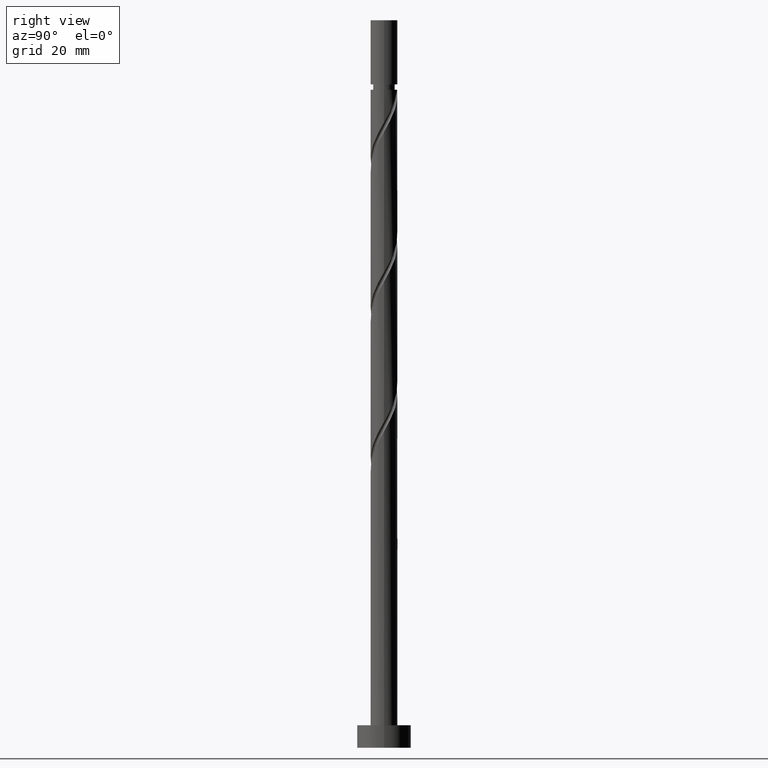
[diagram: clean part render]
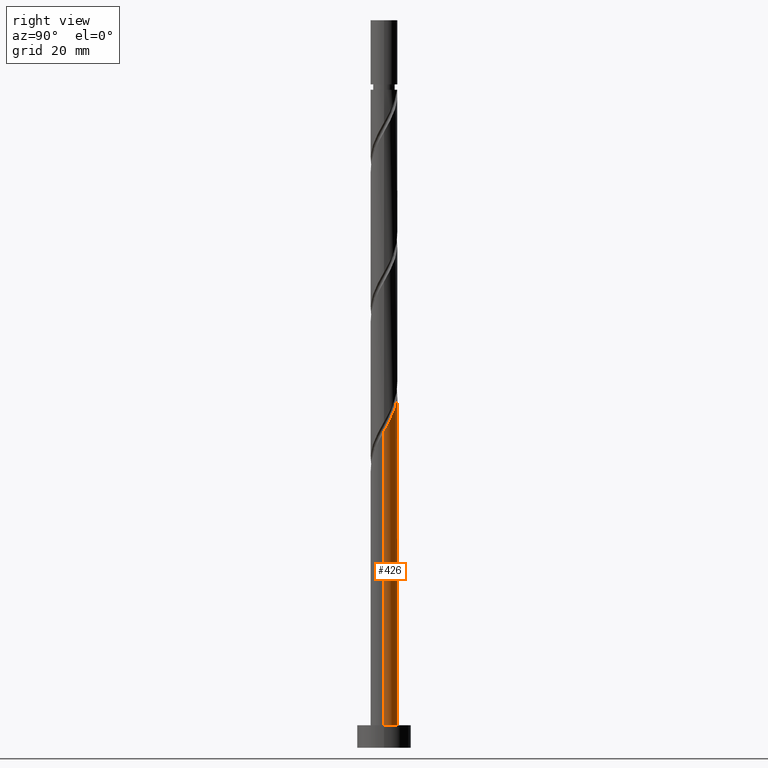
[diagram: same view with one face highlighted and labeled with its STEP entity id]
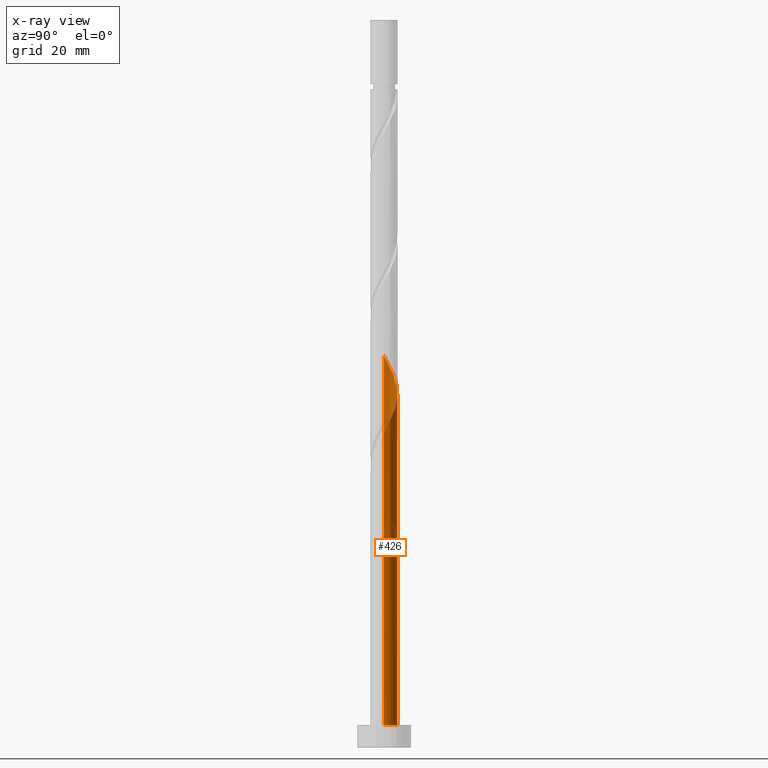
[diagram: x-ray of the same camera — body ghosted, the highlighted face saturated]
A machine part, right view. The second image highlights one B-rep face of the part: STEP entity #426.
The next image is the same camera in x-ray: the body ghosted, the highlighted face saturated — about 0% of this face is hidden behind the body in this view.
In plain terms, the highlighted cylindrical surface (edge-blend (fillet) strip) has radius 3 mm, axis along (-0, -0, -1).
Its self-contained STEP definition (entity closure, byte-faithful):
#16 = CARTESIAN_POINT ( 'NONE',  ( -0.9529893618115770071, 2.844610918258236865, 49.30454666013008591 ) ) ;
#19 = CARTESIAN_POINT ( 'NONE',  ( 1.656756518304344672, 2.501031355072561801, 75.69343554901898585 ) ) ;
#24 = CARTESIAN_POINT ( 'NONE',  ( -0.5784892297585046972, 2.970074347914948731, 48.61010221568562173 ) ) ;
#27 = CARTESIAN_POINT ( 'NONE',  ( 0.5784892297585081389, 2.970074347914953172, 77.77676888235230024 ) ) ;
#30 = EDGE_CURVE ( 'NONE', #1408, #907, #1541, .T. ) ;
#36 = CARTESIAN_POINT ( 'NONE',  ( -2.501031355072562690, 1.656756518304344228, 84.02676888235231445 ) ) ;
#62 = EDGE_CURVE ( 'NONE', #1650, #1019, #709, .T. ) ;
#76 = VECTOR ( 'NONE', #243, 1000.000000000000000 ) ;
#95 = CARTESIAN_POINT ( 'NONE',  ( -3.000000000000005773, 6.833879490734389093E-15, 53.79653556047554730 ) ) ;
#142 = CARTESIAN_POINT ( 'NONE',  ( -0.1842775552007381856, 2.994334948306425659, 47.91565777124118597 ) ) ;
#150 = CARTESIAN_POINT ( 'NONE',  ( -1.327489493864648873, 2.719147488601523666, 49.99899110457450746 ) ) ;
#164 = CARTESIAN_POINT ( 'NONE',  ( -1.337578430002085428, 2.685308910273302097, 81.24899110457452878 ) ) ;
#167 = ORIENTED_EDGE ( 'NONE', *, *, #1230, .T. ) ;
#192 = LINE ( 'NONE', #336, #705 ) ;
#222 = CARTESIAN_POINT ( 'NONE',  ( 0.000000000000000000, 0.000000000000000000, 162.0000000000000000 ) ) ;
#243 = DIRECTION ( 'NONE',  ( -0.000000000000000000, -0.000000000000000000, -1.000000000000000000 ) ) ;
#269 = CARTESIAN_POINT ( 'NONE',  ( 3.000000000000000444, 3.673940397442060361E-16, 5.000000000000000000 ) ) ;
#273 = CARTESIAN_POINT ( 'NONE',  ( 0.2099341193570284925, 3.018595548697901698, 47.22121332679674310 ) ) ;
#299 = CARTESIAN_POINT ( 'NONE',  ( -2.247618455994264242, 1.987010638188423606, 52.08232443790787158 ) ) ;
#302 = CARTESIAN_POINT ( 'NONE',  ( 0.1842775552007414608, 2.994334948306429656, 78.47121332679672889 ) ) ;
#306 = CARTESIAN_POINT ( 'NONE',  ( -2.685308910273296323, 1.337578430002084540, 53.47121332679674310 ) ) ;
#317 = CARTESIAN_POINT ( 'NONE',  ( -2.282915221543597273, 1.986023542744036696, 83.33232443790784316 ) ) ;
#336 = CARTESIAN_POINT ( 'NONE',  ( 3.000000000000000444, 3.673940397442060361E-16, 162.0000000000000000 ) ) ;
#343 =( BOUNDED_CURVE ( )  B_SPLINE_CURVE ( 2, ( #1245, #843, #700, #1092, #860, #1101, #1657, #460, #19, #1626, #1378, #27, #302, #853, #1525, #1386, #164, #716, #1254, #317, #36, #585, #1116, #870, #1648, #449, #988 ),
 .UNSPECIFIED., .F., .F. ) 
 B_SPLINE_CURVE_WITH_KNOTS ( ( 3, 2, 2, 2, 2, 2, 2, 2, 2, 2, 2, 2, 2, 3 ),
 ( 0.1795317669814463779, 0.1875000000000000000, 0.1979166666666666297, 0.2083333333333333703, 0.2187500000000000000, 0.2291666666666666297, 0.2395833333333333703, 0.2500000000000000000, 0.2604166666666666297, 0.2708333333333333703, 0.2812500000000000000, 0.2916666666666666297, 0.3020833333333333703, 0.3045317669814464057 ),
 .UNSPECIFIED. ) 
 CURVE ( )  GEOMETRIC_REPRESENTATION_ITEM ( )  RATIONAL_B_SPLINE_CURVE ( ( 0.9062941362546431678, 0.9031415850403475831, 0.9090909090909228274, 0.9013135103398413062, 0.9090909090909228274, 0.9013135103398413062, 0.9090909090909228274, 0.9013135103398413062, 0.9090909090909228274, 0.9013135103398413062, 0.9090909090909228274, 0.9013135103398413062, 0.9090909090909228274, 0.9013135103398413062, 0.9090909090909228274, 0.9013135103398413062, 0.9090909090909228274, 0.9013135103398413062, 0.9090909090909228274, 0.9013135103398413062, 0.9090909090909228274, 0.9013135103398413062, 0.9090909090909228274, 0.9013135103398413062, 0.9090909090909228274, 0.9072628343904165504, 0.9062941362546430568 ) ) 
 REPRESENTATION_ITEM ( '' )  );
#354 = DIRECTION ( 'NONE',  ( 0.000000000000000000, -0.000000000000000000, -1.000000000000000000 ) ) ;
#357 = EDGE_LOOP ( 'NONE', ( #1313, #167, #750, #1389, #409, #1295, #1161, #418 ) ) ;
#373 = CARTESIAN_POINT ( 'NONE',  ( -1.987010638188425604, 2.247618455994267350, 49.30454666013007170 ) ) ;
#379 = EDGE_CURVE ( 'NONE', #1552, #462, #836, .T. ) ;
#389 = CARTESIAN_POINT ( 'NONE',  ( -3.000000000000004885, 0.09222585497302343560, 53.63337187244741244 ) ) ;
#409 = ORIENTED_EDGE ( 'NONE', *, *, #379, .F. ) ;
#418 = ORIENTED_EDGE ( 'NONE', *, *, #1346, .F. ) ;
#426 = ADVANCED_FACE ( 'NONE', ( #1437 ), #1563, .T. ) ;
#430 = CARTESIAN_POINT ( 'NONE',  ( 0.000000000000000000, 0.000000000000000000, 5.000000000000000000 ) ) ;
#449 = CARTESIAN_POINT ( 'NONE',  ( -3.000000000000004885, 0.09222585497301795388, 86.96670520578072683 ) ) ;
#457 = VERTEX_POINT ( 'NONE', #508 ) ;
#460 = CARTESIAN_POINT ( 'NONE',  ( 1.986023542744038251, 2.282915221543595496, 74.99899110457451457 ) ) ;
#462 = VERTEX_POINT ( 'NONE', #95 ) ;
#508 = CARTESIAN_POINT ( 'NONE',  ( 3.000000000000005773, -3.738446110905027621E-16, 70.46320222714223291 ) ) ;
#535 = CARTESIAN_POINT ( 'NONE',  ( -2.994334948306429656, 0.1842775552007395179, 53.47121332679673600 ) ) ;
#585 = CARTESIAN_POINT ( 'NONE',  ( -2.719147488601527662, 1.327489493864651982, 84.72121332679671468 ) ) ;
#594 = VECTOR ( 'NONE', #1735, 1000.000000000000000 ) ;
#664 = CARTESIAN_POINT ( 'NONE',  ( -2.501031355072562690, 1.656756518304344228, 50.69343554901897164 ) ) ;
#700 = CARTESIAN_POINT ( 'NONE',  ( 2.940000000000005720, 0.5969924622639724010, 71.52676888235231445 ) ) ;
#705 = VECTOR ( 'NONE', #1279, 1000.000000000000000 ) ;
#708 = CARTESIAN_POINT ( 'NONE',  ( 0.5969924622639731782, 2.940000000000000835, 46.52676888235230024 ) ) ;
#709 =( BOUNDED_CURVE ( )  B_SPLINE_CURVE ( 2, ( #1220, #1227, #1749, #1637, #306, #1114, #299, #963, #830, #150, #16, #24, #142, #273, #1623 ),
 .UNSPECIFIED., .F., .T. ) 
 B_SPLINE_CURVE_WITH_KNOTS ( ( 3, 2, 2, 2, 2, 2, 2, 3 ),
 ( 0.9295317669814463502, 0.9375000000000000000, 0.9479166666666666297, 0.9583333333333333703, 0.9687500000000000000, 0.9791666666666666297, 0.9895833333333333703, 1.000000000000000000 ),
 .UNSPECIFIED. ) 
 CURVE ( )  GEOMETRIC_REPRESENTATION_ITEM ( )  RATIONAL_B_SPLINE_CURVE ( ( 0.9062941362546369506, 0.9031415850403413659, 0.9090909090909166101, 0.9013135103398351999, 0.9090909090909166101, 0.9013135103398351999, 0.9090909090909166101, 0.9013135103398351999, 0.9090909090909166101, 0.9013135103398351999, 0.9090909090909166101, 0.9013135103398351999, 0.9090909090909166101, 0.9013135103398351999, 0.9090909090909166101 ) ) 
 REPRESENTATION_ITEM ( '' )  );
#716 = CARTESIAN_POINT ( 'NONE',  ( -1.691106054833254158, 2.509213369244498448, 81.94343554901894322 ) ) ;
#746 = VERTEX_POINT ( 'NONE', #806 ) ;
#750 = ORIENTED_EDGE ( 'NONE', *, *, #30, .T. ) ;
#806 = CARTESIAN_POINT ( 'NONE',  ( -3.000000000000005773, -1.525286013249251123E-15, 87.12986889380889011 ) ) ;
#830 = CARTESIAN_POINT ( 'NONE',  ( -1.656756518304340897, 2.501031355072560025, 50.69343554901897164 ) ) ;
#836 =( BOUNDED_CURVE ( )  B_SPLINE_CURVE ( 2, ( #1595, #1190, #1342, #1172, #373, #932, #664, #1452, #1723, #1468, #535, #389, #1435 ),
 .UNSPECIFIED., .F., .T. ) 
 B_SPLINE_CURVE_WITH_KNOTS ( ( 3, 2, 2, 2, 2, 2, 3 ),
 ( 0.000000000000000000, 0.01041666666666662966, 0.02083333333333337034, 0.03125000000000000000, 0.04166666666666662966, 0.05208333333333337034, 0.05453176698144625995 ),
 .UNSPECIFIED. ) 
 CURVE ( )  GEOMETRIC_REPRESENTATION_ITEM ( )  RATIONAL_B_SPLINE_CURVE ( ( 0.9090909090909228274, 0.9013135103398413062, 0.9090909090909228274, 0.9013135103398413062, 0.9090909090909228274, 0.9013135103398413062, 0.9090909090909228274, 0.9013135103398413062, 0.9090909090909228274, 0.9013135103398413062, 0.9090909090909228274, 0.9072628343904165504, 0.9062941362546430568 ) ) 
 REPRESENTATION_ITEM ( '' )  );
#843 = CARTESIAN_POINT ( 'NONE',  ( 3.000000000000004885, 0.3015113445777638512, 70.99662859633151868 ) ) ;
#853 = CARTESIAN_POINT ( 'NONE',  ( -0.2099341193570253006, 3.018595548697906139, 79.16565777124120018 ) ) ;
#860 = CARTESIAN_POINT ( 'NONE',  ( 2.685308910273302985, 1.337578430002084540, 72.91565777124118597 ) ) ;
#870 = CARTESIAN_POINT ( 'NONE',  ( -2.970074347914953616, 0.5784892297585063625, 86.11010221568562883 ) ) ;
#907 = VERTEX_POINT ( 'NONE', #1233 ) ;
#932 = CARTESIAN_POINT ( 'NONE',  ( -2.282915221543597273, 1.986023542744036696, 49.99899110457451457 ) ) ;
#963 = CARTESIAN_POINT ( 'NONE',  ( -1.986023542744032921, 2.282915221543593720, 51.38787999346340030 ) ) ;
#988 = CARTESIAN_POINT ( 'NONE',  ( -3.000000000000005773, -1.525286013249251123E-15, 87.12986889380889011 ) ) ;
#1019 = VERTEX_POINT ( 'NONE', #708 ) ;
#1024 = CARTESIAN_POINT ( 'NONE',  ( -3.000000000000000888, 2.975803104280421781E-15, 55.92366887089568905 ) ) ;
#1046 = DIRECTION ( 'NONE',  ( -1.000000000000000000, 0.000000000000000000, 0.000000000000000000 ) ) ;
#1092 = CARTESIAN_POINT ( 'NONE',  ( 2.861404451302104412, 0.9840508051709162540, 72.22121332679672889 ) ) ;
#1101 = CARTESIAN_POINT ( 'NONE',  ( 2.509213369244500225, 1.691106054833252381, 73.61010221568561462 ) ) ;
#1114 = CARTESIAN_POINT ( 'NONE',  ( -2.509213369244495340, 1.691106054833251493, 52.77676888235230024 ) ) ;
#1116 = CARTESIAN_POINT ( 'NONE',  ( -2.844610918258240861, 0.9529893618115796716, 85.41565777124120018 ) ) ;
#1161 = ORIENTED_EDGE ( 'NONE', *, *, #62, .F. ) ;
#1163 = EDGE_CURVE ( 'NONE', #1552, #1019, #1242, .T. ) ;
#1172 = CARTESIAN_POINT ( 'NONE',  ( -1.691106054833254158, 2.509213369244498448, 48.61010221568562883 ) ) ;
#1190 = CARTESIAN_POINT ( 'NONE',  ( -0.9840508051709171422, 2.861404451302102636, 47.22121332679673600 ) ) ;
#1213 = CARTESIAN_POINT ( 'NONE',  ( -3.000000000000000444, 0.000000000000000000, 162.0000000000000000 ) ) ;
#1220 = CARTESIAN_POINT ( 'NONE',  ( -3.000000000000000888, 2.975803104280421781E-15, 55.92366887089568905 ) ) ;
#1227 = CARTESIAN_POINT ( 'NONE',  ( -3.000000000000000888, 0.3015113445777656276, 55.39024250170641750 ) ) ;
#1230 = EDGE_CURVE ( 'NONE', #457, #1408, #192, .T. ) ;
#1233 = CARTESIAN_POINT ( 'NONE',  ( -3.000000000000000444, 0.000000000000000000, 5.000000000000000000 ) ) ;
#1242 = CIRCLE ( 'NONE', #1651, 3.000000000000000444 ) ;
#1245 = CARTESIAN_POINT ( 'NONE',  ( 3.000000000000006217, -3.738446110905027621E-16, 70.46320222714223291 ) ) ;
#1250 = DIRECTION ( 'NONE',  ( 0.000000000000000000, 0.000000000000000000, 1.000000000000000000 ) ) ;
#1254 = CARTESIAN_POINT ( 'NONE',  ( -1.987010638188425604, 2.247618455994267350, 82.63787999346340030 ) ) ;
#1279 = DIRECTION ( 'NONE',  ( -0.000000000000000000, -0.000000000000000000, -1.000000000000000000 ) ) ;
#1295 = ORIENTED_EDGE ( 'NONE', *, *, #1163, .T. ) ;
#1298 = DIRECTION ( 'NONE',  ( -1.000000000000000000, 0.000000000000000000, 0.000000000000000000 ) ) ;
#1313 = ORIENTED_EDGE ( 'NONE', *, *, #1597, .F. ) ;
#1342 = CARTESIAN_POINT ( 'NONE',  ( -1.337578430002085428, 2.685308910273302097, 47.91565777124118597 ) ) ;
#1346 = EDGE_CURVE ( 'NONE', #746, #1650, #1490, .T. ) ;
#1363 = DIRECTION ( 'NONE',  ( 1.000000000000000000, 0.000000000000000000, 0.000000000000000000 ) ) ;
#1366 = CARTESIAN_POINT ( 'NONE',  ( -3.000000000000000444, 0.000000000000000000, 162.0000000000000000 ) ) ;
#1372 = CARTESIAN_POINT ( 'NONE',  ( -0.5969924622639720679, 2.940000000000005276, 46.52676888235230024 ) ) ;
#1378 = CARTESIAN_POINT ( 'NONE',  ( 0.9529893618115807818, 2.844610918258240417, 77.08232443790785737 ) ) ;
#1386 = CARTESIAN_POINT ( 'NONE',  ( -0.9840508051709171422, 2.861404451302102636, 80.55454666013008591 ) ) ;
#1389 = ORIENTED_EDGE ( 'NONE', *, *, #1396, .F. ) ;
#1396 = EDGE_CURVE ( 'NONE', #462, #907, #1482, .T. ) ;
#1408 = VERTEX_POINT ( 'NONE', #269 ) ;
#1435 = CARTESIAN_POINT ( 'NONE',  ( -3.000000000000005773, 6.833879490734389093E-15, 53.79653556047555441 ) ) ;
#1436 = CARTESIAN_POINT ( 'NONE',  ( 0.000000000000000000, 0.000000000000000000, 46.52676888235230024 ) ) ;
#1437 = FACE_OUTER_BOUND ( 'NONE', #357, .T. ) ;
#1438 = AXIS2_PLACEMENT_3D ( 'NONE', #222, #1454, #1046 ) ;
#1439 = AXIS2_PLACEMENT_3D ( 'NONE', #430, #1250, #1363 ) ;
#1452 = CARTESIAN_POINT ( 'NONE',  ( -2.719147488601527662, 1.327489493864651982, 51.38787999346340030 ) ) ;
#1454 = DIRECTION ( 'NONE',  ( -0.000000000000000000, -0.000000000000000000, -1.000000000000000000 ) ) ;
#1468 = CARTESIAN_POINT ( 'NONE',  ( -2.970074347914953616, 0.5784892297585063625, 52.77676888235231445 ) ) ;
#1482 = LINE ( 'NONE', #1213, #76 ) ;
#1490 = LINE ( 'NONE', #1366, #594 ) ;
#1525 = CARTESIAN_POINT ( 'NONE',  ( -0.5969924622639720679, 2.940000000000005720, 79.86010221568565726 ) ) ;
#1541 = CIRCLE ( 'NONE', #1439, 3.000000000000000444 ) ;
#1552 = VERTEX_POINT ( 'NONE', #1372 ) ;
#1563 = CYLINDRICAL_SURFACE ( 'NONE', #1438, 3.000000000000000444 ) ;
#1595 = CARTESIAN_POINT ( 'NONE',  ( -0.5969924622639720679, 2.940000000000004832, 46.52676888235230024 ) ) ;
#1597 = EDGE_CURVE ( 'NONE', #457, #746, #343, .T. ) ;
#1623 = CARTESIAN_POINT ( 'NONE',  ( 0.5969924622639731782, 2.940000000000000835, 46.52676888235230734 ) ) ;
#1626 = CARTESIAN_POINT ( 'NONE',  ( 1.327489493864653314, 2.719147488601527662, 76.38787999346342872 ) ) ;
#1637 = CARTESIAN_POINT ( 'NONE',  ( -2.861404451302098639, 0.9840508051709164761, 54.16565777124117176 ) ) ;
#1648 = CARTESIAN_POINT ( 'NONE',  ( -2.994334948306429656, 0.1842775552007395179, 86.80454666013007170 ) ) ;
#1650 = VERTEX_POINT ( 'NONE', #1024 ) ;
#1651 = AXIS2_PLACEMENT_3D ( 'NONE', #1436, #354, #1298 ) ;
#1657 = CARTESIAN_POINT ( 'NONE',  ( 2.247618455994269127, 1.987010638188424050, 74.30454666013007170 ) ) ;
#1723 = CARTESIAN_POINT ( 'NONE',  ( -2.844610918258240861, 0.9529893618115796716, 52.08232443790786448 ) ) ;
#1735 = DIRECTION ( 'NONE',  ( -0.000000000000000000, -0.000000000000000000, -1.000000000000000000 ) ) ;
#1749 = CARTESIAN_POINT ( 'NONE',  ( -2.940000000000000835, 0.5969924622639725120, 54.86010221568562883 ) ) ;